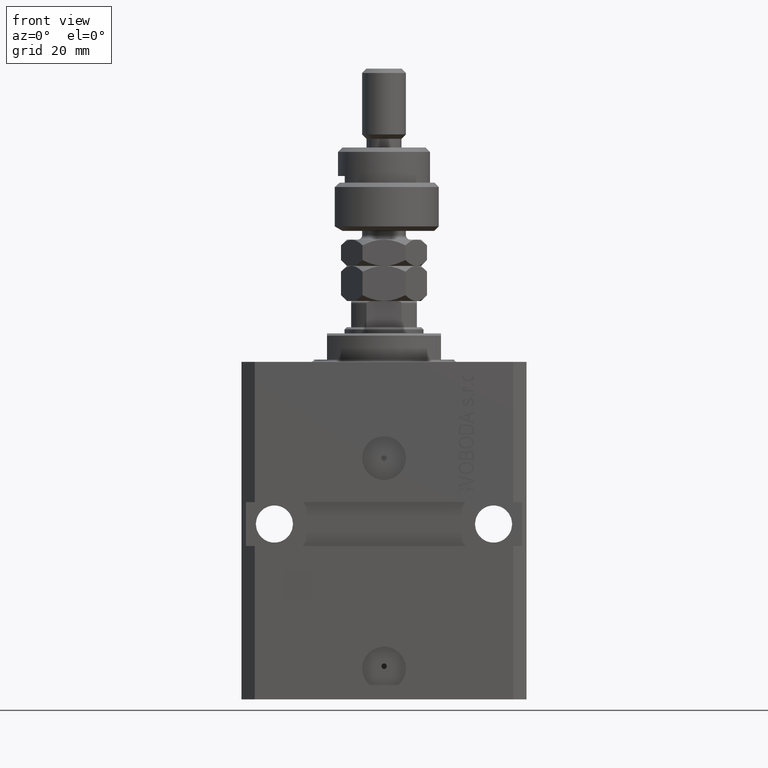
[diagram: clean part render]
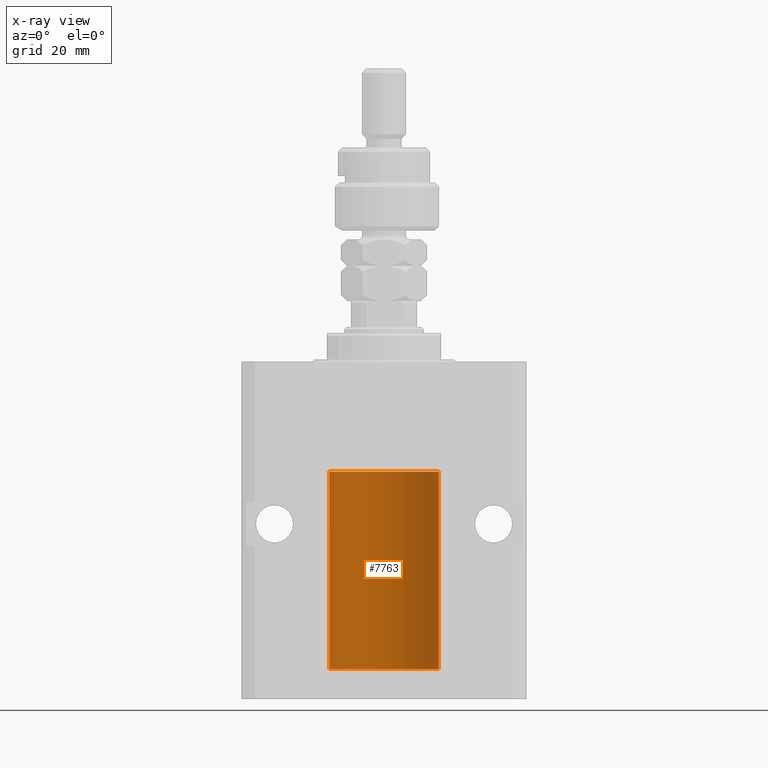
[diagram: x-ray — body ghosted, one internal face saturated and labeled with its STEP entity id]
A machine part, front view, then the same camera in x-ray: the body is ghosted and one INTERNAL B-rep face — a face not visible from any outside direction — is saturated and labeled: STEP entity #7763.
In plain terms, the highlighted cylindrical surface (partial cylindrical patch) has radius 12.5 mm, axis along (0, 0, 1).
Its self-contained STEP definition (entity closure, byte-faithful):
#838 = ORIENTED_EDGE ( 'NONE', *, *, #39053, .F. ) ;
#1342 = CARTESIAN_POINT ( 'NONE',  ( -12.50000000000017941, 3.883381774819353300E-13, -65.62500000000359535 ) ) ;
#1692 = CARTESIAN_POINT ( 'NONE',  ( -12.50000000000000000, 1.530808498934191127E-15, -70.09999999999999432 ) ) ;
#1839 = CARTESIAN_POINT ( 'NONE',  ( -12.48520330846398174, 0.6088355886774118320, -65.16325431852561678 ) ) ;
#2743 = DIRECTION ( 'NONE',  ( -0.000000000000000000, -0.000000000000000000, 1.000000000000000000 ) ) ;
#3872 = DIRECTION ( 'NONE',  ( 1.000000000000000000, 0.000000000000000000, 0.000000000000000000 ) ) ;
#4392 = ORIENTED_EDGE ( 'NONE', *, *, #18512, .F. ) ;
#4607 = CARTESIAN_POINT ( 'NONE',  ( -12.49999999999999289, 0.1631761135151231223, -65.62499999999984368 ) ) ;
#5344 = DIRECTION ( 'NONE',  ( -0.000000000000000000, -0.000000000000000000, 1.000000000000000000 ) ) ;
#6074 = CARTESIAN_POINT ( 'NONE',  ( -12.50000000000000000, 1.530808498934191127E-15, -70.09999999999999432 ) ) ;
#6888 = EDGE_CURVE ( 'NONE', #41660, #37173, #41647, .T. ) ;
#7763 = ADVANCED_FACE ( 'NONE', ( #8888 ), #42772, .F. ) ;
#7913 = ORIENTED_EDGE ( 'NONE', *, *, #41355, .T. ) ;
#8655 = CARTESIAN_POINT ( 'NONE',  ( -12.49915784441386890, 0.1636601911727942615, -64.39126818989430490 ) ) ;
#8743 = VECTOR ( 'NONE', #2743, 1000.000000000000000 ) ;
#8888 = FACE_OUTER_BOUND ( 'NONE', #43759, .T. ) ;
#9027 = VECTOR ( 'NONE', #48305, 1000.000000000000000 ) ;
#9165 = CARTESIAN_POINT ( 'NONE',  ( -12.48809959379011580, 0.5462151254764967545, -65.31461370481615347 ) ) ;
#9221 = ORIENTED_EDGE ( 'NONE', *, *, #17763, .F. ) ;
#12283 = VECTOR ( 'NONE', #17829, 1000.000000000000000 ) ;
#12676 = CARTESIAN_POINT ( 'NONE',  ( -12.49631005746706158, 0.3253680783018496059, -65.55856740465392818 ) ) ;
#12930 = CARTESIAN_POINT ( 'NONE',  ( -12.49422197749724539, 0.3843754434364305972, -64.50047099568097053 ) ) ;
#13032 = CARTESIAN_POINT ( 'NONE',  ( -12.50000000000000000, 1.530808498934191127E-15, -70.09999999999999432 ) ) ;
#13363 = DIRECTION ( 'NONE',  ( 1.000000000000000000, 0.000000000000000000, 0.000000000000000000 ) ) ;
#13868 = CARTESIAN_POINT ( 'NONE',  ( 0.000000000000000000, 0.000000000000000000, -25.10000000000000142 ) ) ;
#14657 = CIRCLE ( 'NONE', #42933, 12.50000000000000000 ) ;
#14895 = VERTEX_POINT ( 'NONE', #46884 ) ;
#16195 = CARTESIAN_POINT ( 'NONE',  ( -12.50000000000000000, 1.530808498934191127E-15, -25.10000000000000142 ) ) ;
#17763 = EDGE_CURVE ( 'NONE', #18394, #49128, #32867, .T. ) ;
#17829 = DIRECTION ( 'NONE',  ( -0.000000000000000000, -0.000000000000000000, 1.000000000000000000 ) ) ;
#18394 = VERTEX_POINT ( 'NONE', #35036 ) ;
#18512 = EDGE_CURVE ( 'NONE', #18598, #14895, #47692, .T. ) ;
#18598 = VERTEX_POINT ( 'NONE', #13032 ) ;
#20545 = CARTESIAN_POINT ( 'NONE',  ( -12.48436813453758454, 0.6249418250771179295, -64.83668996798921569 ) ) ;
#23550 = CARTESIAN_POINT ( 'NONE',  ( 0.000000000000000000, 0.000000000000000000, -70.09999999999999432 ) ) ;
#24056 = DIRECTION ( 'NONE',  ( 1.000000000000000000, 0.000000000000000000, 0.000000000000000000 ) ) ;
#24739 = B_SPLINE_CURVE_WITH_KNOTS ( 'NONE', 3,
 ( #43802, #39233, #8655, #47592, #12930, #47089, #20545, #40242, #1839, #9165, #35704, #12676, #4607, #1342 ),
 .UNSPECIFIED., .F., .F.,
 ( 4, 2, 2, 2, 2, 2, 4 ),
 ( 3.452213508042194616E-18, 0.0002442924852390797774, 0.0004885849704781561938, 0.0009771699409563384085, 0.001221462426195450224, 0.001465754911434562040, 0.001954339881912785671 ),
 .UNSPECIFIED. ) ;
#26269 = EDGE_CURVE ( 'NONE', #18394, #14895, #24739, .T. ) ;
#27231 = CARTESIAN_POINT ( 'NONE',  ( 12.50000000000000000, 0.000000000000000000, -70.09999999999999432 ) ) ;
#32867 = LINE ( 'NONE', #6074, #9027 ) ;
#33348 = DIRECTION ( 'NONE',  ( 0.000000000000000000, 0.000000000000000000, 1.000000000000000000 ) ) ;
#34942 = CIRCLE ( 'NONE', #47895, 12.50000000000000000 ) ;
#35036 = CARTESIAN_POINT ( 'NONE',  ( -12.50000000000000000, -1.050566418211748297E-14, -64.37500000000000000 ) ) ;
#35704 = CARTESIAN_POINT ( 'NONE',  ( -12.49011732893843707, 0.5003763274120244242, -65.38348111289288056 ) ) ;
#36952 = ORIENTED_EDGE ( 'NONE', *, *, #26269, .T. ) ;
#37173 = VERTEX_POINT ( 'NONE', #49133 ) ;
#37498 = ORIENTED_EDGE ( 'NONE', *, *, #6888, .T. ) ;
#37837 = CARTESIAN_POINT ( 'NONE',  ( 12.50000000000000000, 0.000000000000000000, -70.09999999999999432 ) ) ;
#39053 = EDGE_CURVE ( 'NONE', #41660, #18598, #14657, .T. ) ;
#39233 = CARTESIAN_POINT ( 'NONE',  ( -12.49999999999999645, 0.08260426088728482774, -64.37499999999998579 ) ) ;
#39447 = AXIS2_PLACEMENT_3D ( 'NONE', #23550, #5344, #24056 ) ;
#40242 = CARTESIAN_POINT ( 'NONE',  ( -12.48436376893640087, 0.6250290278979918623, -65.08132082824472775 ) ) ;
#41355 = EDGE_CURVE ( 'NONE', #37173, #49128, #34942, .T. ) ;
#41647 = LINE ( 'NONE', #37837, #8743 ) ;
#41660 = VERTEX_POINT ( 'NONE', #27231 ) ;
#42056 = CARTESIAN_POINT ( 'NONE',  ( 0.000000000000000000, 0.000000000000000000, -70.09999999999999432 ) ) ;
#42772 = CYLINDRICAL_SURFACE ( 'NONE', #39447, 12.50000000000000000 ) ;
#42803 = DIRECTION ( 'NONE',  ( 0.000000000000000000, 0.000000000000000000, 1.000000000000000000 ) ) ;
#42933 = AXIS2_PLACEMENT_3D ( 'NONE', #42056, #42803, #3872 ) ;
#43759 = EDGE_LOOP ( 'NONE', ( #4392, #838, #37498, #7913, #9221, #36952 ) ) ;
#43802 = CARTESIAN_POINT ( 'NONE',  ( -12.50000000000000000, -1.050566418211748297E-14, -64.37500000000000000 ) ) ;
#46884 = CARTESIAN_POINT ( 'NONE',  ( -12.50000000000017941, 3.883381774819353300E-13, -65.62500000000359535 ) ) ;
#47089 = CARTESIAN_POINT ( 'NONE',  ( -12.48810268015257741, 0.5573155909661291485, -64.67347410093869087 ) ) ;
#47592 = CARTESIAN_POINT ( 'NONE',  ( -12.49625855304193855, 0.3150454781038045660, -64.45402800297485157 ) ) ;
#47692 = LINE ( 'NONE', #1692, #12283 ) ;
#47895 = AXIS2_PLACEMENT_3D ( 'NONE', #13868, #33348, #13363 ) ;
#48305 = DIRECTION ( 'NONE',  ( -0.000000000000000000, -0.000000000000000000, 1.000000000000000000 ) ) ;
#49128 = VERTEX_POINT ( 'NONE', #16195 ) ;
#49133 = CARTESIAN_POINT ( 'NONE',  ( 12.50000000000000000, 0.000000000000000000, -25.10000000000000142 ) ) ;